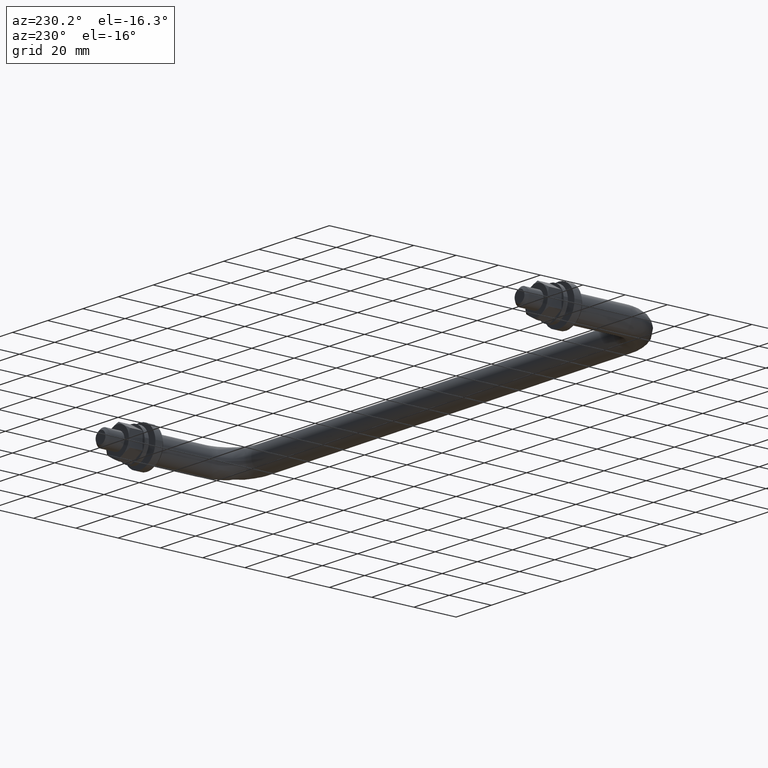
[diagram: clean part render]
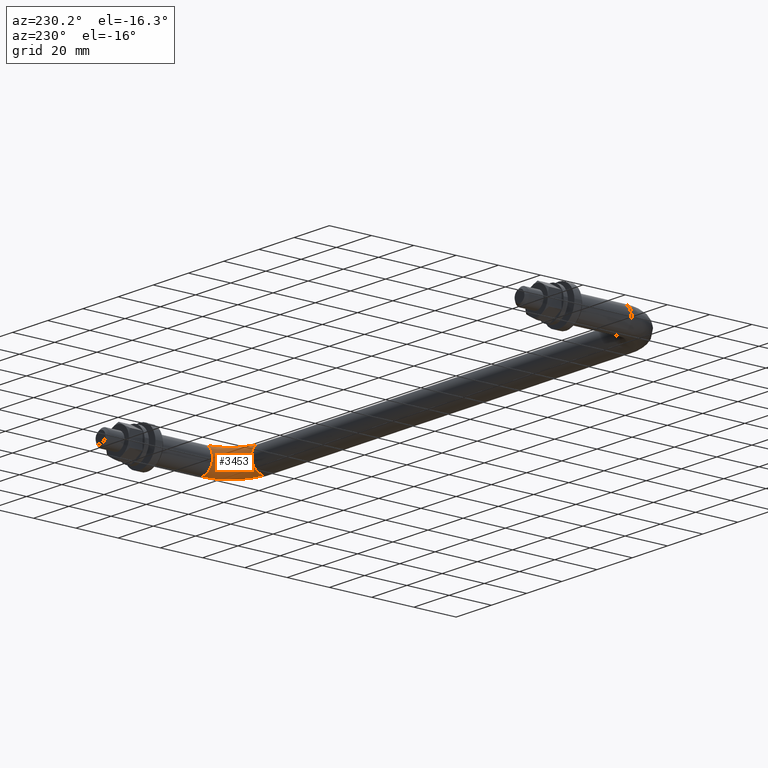
[diagram: same view with one face highlighted and labeled with its STEP entity id]
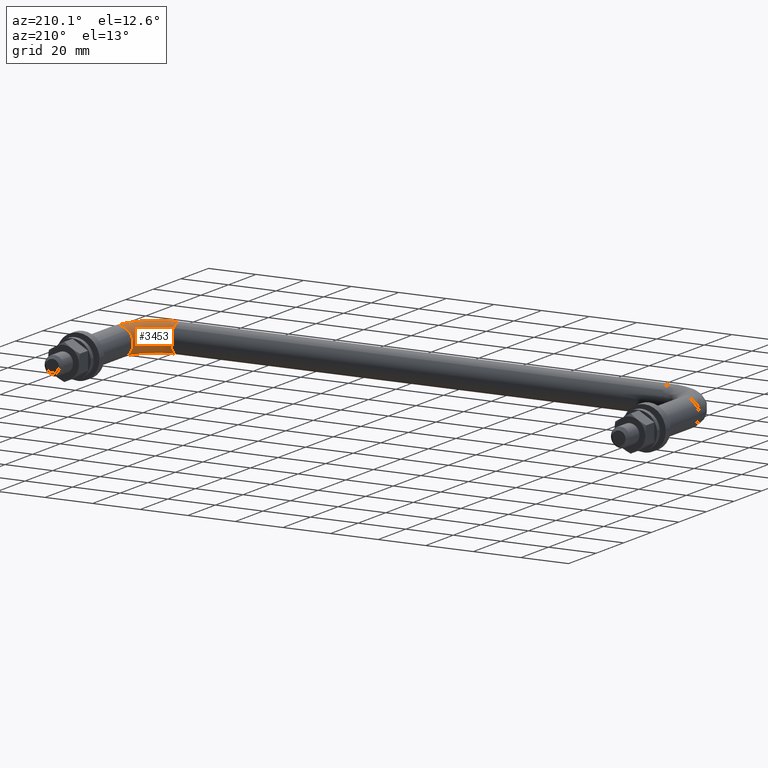
[diagram: same view with one face highlighted and labeled with its STEP entity id]
A machine part, auxiliary view. The second image highlights one B-rep face of the part: STEP entity #3453.
A second angle (auxiliary view) of the same face is appended — the face is thin or edge-on in the first view.
In plain terms, the highlighted face is a freeform B-spline surface patch.
Its self-contained STEP definition (entity closure, byte-faithful):
#2738=CARTESIAN_POINT('',(237.924603760736890,-28.000000000244398,-5.999526265223361));
#2739=VERTEX_POINT('',#2738);
#2757=CARTESIAN_POINT('',(232.0,-28.0,0.0));
#2758=VERTEX_POINT('',#2757);
#2759=CARTESIAN_POINT('',(232.0,-28.0,0.0));
#2760=CARTESIAN_POINT('',(232.000000000000030,-28.0,-5.925071579517050));
#2761=CARTESIAN_POINT('',(237.924603760736970,-28.000000000244402,-5.999526265223361));
#2769=(BOUNDED_CURVE()B_SPLINE_CURVE(2,(#2759,#2760,#2761),.UNSPECIFIED.,.F.,.U.)B_SPLINE_CURVE_WITH_KNOTS((3,3),(0.0,0.247784295923900),.UNSPECIFIED.)CURVE()GEOMETRIC_REPRESENTATION_ITEM()RATIONAL_B_SPLINE_CURVE((1.0,0.709702639981696,0.994854295649010))REPRESENTATION_ITEM(''));
#2770=EDGE_CURVE('',#2758,#2739,#2769,.T.);
#2772=CARTESIAN_POINT('',(234.264912180170310,-28.0,4.695648941111294));
#2773=VERTEX_POINT('',#2772);
#2774=CARTESIAN_POINT('',(234.264912180170230,-28.000000000000007,4.695648941111295));
#2775=CARTESIAN_POINT('',(232.0,-27.999999999999993,2.894056444899107));
#2776=CARTESIAN_POINT('',(232.0,-28.0,0.0));
#2784=(BOUNDED_CURVE()B_SPLINE_CURVE(2,(#2774,#2775,#2776),.UNSPECIFIED.,.F.,.U.)B_SPLINE_CURVE_WITH_KNOTS((3,3),(0.857863877391704,1.0),.UNSPECIFIED.)CURVE()GEOMETRIC_REPRESENTATION_ITEM()RATIONAL_B_SPLINE_CURVE((0.856305618643987,0.833477174158371,1.0))REPRESENTATION_ITEM(''));
#2785=EDGE_CURVE('',#2773,#2758,#2784,.T.);
#2899=CARTESIAN_POINT('',(238.418400041081100,-27.999999988341919,5.985394005879900));
#2900=VERTEX_POINT('',#2899);
#2901=CARTESIAN_POINT('',(238.418400041081160,-27.999999988341923,5.985394005879900));
#2902=CARTESIAN_POINT('',(238.209455228823490,-28.000000000000004,6.0));
#2903=CARTESIAN_POINT('',(238.0,-28.0,6.0));
#2904=CARTESIAN_POINT('',(235.904706199465100,-27.999999999999993,6.0));
#2905=CARTESIAN_POINT('',(234.264912180170280,-28.0,4.695648941111294));
#2913=(BOUNDED_CURVE()B_SPLINE_CURVE(2,(#2901,#2902,#2903,#2904,#2905),.UNSPECIFIED.,.F.,.U.)B_SPLINE_CURVE_WITH_KNOTS((3,2,3),(0.737833655983836,0.750000000000000,0.857863877391703),.UNSPECIFIED.)CURVE()GEOMETRIC_REPRESENTATION_ITEM()RATIONAL_B_SPLINE_CURVE((0.972879811768446,0.985746241359656,1.0,0.873629607028178,0.856305618643987))REPRESENTATION_ITEM(''));
#2914=EDGE_CURVE('',#2900,#2773,#2913,.T.);
#2954=CARTESIAN_POINT('',(222.000000001557710,-43.924603758642313,-5.999526265197038));
#2955=VERTEX_POINT('',#2954);
#3027=CARTESIAN_POINT('',(222.0,-40.024279710704903,4.493734324733426));
#3028=VERTEX_POINT('',#3027);
#3034=CARTESIAN_POINT('',(222.0,-38.0,0.0));
#3035=VERTEX_POINT('',#3034);
#3036=CARTESIAN_POINT('',(222.0,-40.024279710704903,4.493734324733426));
#3037=CARTESIAN_POINT('',(222.0,-37.999999999999993,2.702802922143729));
#3038=CARTESIAN_POINT('',(222.0,-38.0,0.0));
#3046=(BOUNDED_CURVE()B_SPLINE_CURVE(2,(#3036,#3037,#3038),.UNSPECIFIED.,.F.,.U.)B_SPLINE_CURVE_WITH_KNOTS((3,3),(0.865779888059616,1.0),.UNSPECIFIED.)CURVE()GEOMETRIC_REPRESENTATION_ITEM()RATIONAL_B_SPLINE_CURVE((0.854350158224966,0.842751357537116,1.0))REPRESENTATION_ITEM(''));
#3047=EDGE_CURVE('',#3028,#3035,#3046,.T.);
#3049=CARTESIAN_POINT('',(222.0,-38.0,0.0));
#3050=CARTESIAN_POINT('',(221.999999999999940,-37.999999999999993,-5.925071575379492));
#3051=CARTESIAN_POINT('',(222.000000001557710,-43.924603758642306,-5.999526265197038));
#3059=(BOUNDED_CURVE()B_SPLINE_CURVE(2,(#3049,#3050,#3051),.UNSPECIFIED.,.F.,.U.)B_SPLINE_CURVE_WITH_KNOTS((3,3),(0.0,0.247784295801099),.UNSPECIFIED.)CURVE()GEOMETRIC_REPRESENTATION_ITEM()RATIONAL_B_SPLINE_CURVE((1.0,0.709702640125566,0.994854295366371))REPRESENTATION_ITEM(''));
#3060=EDGE_CURVE('',#3035,#2955,#3059,.T.);
#3098=CARTESIAN_POINT('',(221.999999978992090,-44.418400041564851,5.985394005846084));
#3099=VERTEX_POINT('',#3098);
#3113=CARTESIAN_POINT('',(221.999999978992150,-44.418400041564858,5.985394005846084));
#3114=CARTESIAN_POINT('',(222.000000000000060,-44.209455229309008,6.0));
#3115=CARTESIAN_POINT('',(222.0,-44.0,6.0));
#3116=CARTESIAN_POINT('',(221.999999999999970,-41.726803347827115,6.0));
#3117=CARTESIAN_POINT('',(221.999999999999940,-40.024279710704910,4.493734324733426));
#3125=(BOUNDED_CURVE()B_SPLINE_CURVE(2,(#3113,#3114,#3115,#3116,#3117),.UNSPECIFIED.,.F.,.U.)B_SPLINE_CURVE_WITH_KNOTS((3,2,3),(0.737833655956036,0.750000000000000,0.865779888059615),.UNSPECIFIED.)CURVE()GEOMETRIC_REPRESENTATION_ITEM()RATIONAL_B_SPLINE_CURVE((0.972879811709646,0.985746241327086,1.0,0.864355423649432,0.854350158224966))REPRESENTATION_ITEM(''));
#3126=EDGE_CURVE('',#3099,#3028,#3125,.T.);
#3390=CARTESIAN_POINT('',(220.858312176858730,-44.378656248895858,5.985394066133805));
#3391=CARTESIAN_POINT('',(239.691435207828990,-45.691434715543750,5.985394066133804));
#3392=CARTESIAN_POINT('',(238.378656217127030,-26.858311721103281,5.985394066133805));
#3393=CARTESIAN_POINT('',(220.870223828893500,-44.207771660237903,5.997368459328779));
#3394=CARTESIAN_POINT('',(239.506853909930040,-45.506853422781191,5.997368459328780));
#3395=CARTESIAN_POINT('',(238.207771628800630,-26.870223377893055,5.997368459328781));
#3396=CARTESIAN_POINT('',(220.882163605699300,-44.036483593546343,5.999526265222895));
#3397=CARTESIAN_POINT('',(239.321836794502840,-45.321836312502107,5.999526265222896));
#3398=CARTESIAN_POINT('',(238.036483562441190,-26.882163159465186,5.999526265222896));
#3399=CARTESIAN_POINT('',(221.299353248056830,-38.051479983738822,6.074922504523010));
#3400=CARTESIAN_POINT('',(232.857124306952390,-38.857124004840045,6.074922504523014));
#3401=CARTESIAN_POINT('',(232.051479964242530,-27.299352968362516,6.074922504523012));
#3402=CARTESIAN_POINT('',(221.304596083693890,-37.976266251115838,0.075396239300117));
#3403=CARTESIAN_POINT('',(232.775882057453030,-38.775881757601248,0.075396239300117));
#3404=CARTESIAN_POINT('',(231.976266231765350,-27.304595806092468,0.075396239300117));
#3405=CARTESIAN_POINT('',(221.309838919330930,-37.901052518492840,-5.924130025922777));
#3406=CARTESIAN_POINT('',(232.694639807953510,-38.694639510362428,-5.924130025922778));
#3407=CARTESIAN_POINT('',(231.901052499288340,-27.309838643822427,-5.924130025922779));
#3408=CARTESIAN_POINT('',(220.892649276973490,-43.886056128300361,-5.999526265222895));
#3409=CARTESIAN_POINT('',(239.159352295503910,-45.159351818024525,-5.999526265222896));
#3410=CARTESIAN_POINT('',(237.886056097487000,-26.892648834925104,-5.999526265222896));
#3418=(BOUNDED_SURFACE()B_SPLINE_SURFACE(2,2,((#3390,#3393,#3396,#3399,#3402,#3405,#3408),(#3391,#3394,#3397,#3400,#3403,#3406,#3409),(#3392,#3395,#3398,#3401,#3404,#3407,#3410)),.UNSPECIFIED.,.F.,.F.,.U.)B_SPLINE_SURFACE_WITH_KNOTS((3,3),(3,2,2,3),(0.0,29.920462421271090),(0.0,0.397644640654331,10.338770137608661,20.279895634562990),.UNSPECIFIED.)GEOMETRIC_REPRESENTATION_ITEM()RATIONAL_B_SPLINE_SURFACE(((0.895729732449210,0.905606490046838,0.916342095240933,0.647951709431553,0.916342095240933,0.647951709431553,0.916342095240933),(0.587800221482116,0.594281596491894,0.601326568744382,0.425202094466791,0.601326568744382,0.425202094466791,0.601326568744382),(0.895729743804760,0.905606501527600,0.916342106857795,0.647951717645915,0.916342106857795,0.647951717645915,0.916342106857795)))REPRESENTATION_ITEM('')SURFACE());
#3419=ORIENTED_EDGE('',*,*,#2914,.T.);
#3420=ORIENTED_EDGE('',*,*,#2785,.T.);
#3421=ORIENTED_EDGE('',*,*,#2770,.T.);
#3422=CARTESIAN_POINT('',(222.000000001557650,-43.924603758642291,-5.999526265197038));
#3423=CARTESIAN_POINT('',(237.924603760211170,-43.924603757584578,-5.999526265222896));
#3424=CARTESIAN_POINT('',(237.924603760736890,-28.000000000244398,-5.999526265223361));
#3432=(BOUNDED_CURVE()B_SPLINE_CURVE(2,(#3422,#3423,#3424),.UNSPECIFIED.,.F.,.U.)B_SPLINE_CURVE_WITH_KNOTS((3,3),(-1.734750791455125,-0.265249208373494),.UNSPECIFIED.)CURVE()GEOMETRIC_REPRESENTATION_ITEM()RATIONAL_B_SPLINE_CURVE((0.889029723504402,0.628638946258975,0.889029723565138))REPRESENTATION_ITEM(''));
#3433=EDGE_CURVE('',#2955,#2739,#3432,.T.);
#3434=ORIENTED_EDGE('',*,*,#3433,.F.);
#3435=ORIENTED_EDGE('',*,*,#3060,.F.);
#3436=ORIENTED_EDGE('',*,*,#3047,.F.);
#3437=ORIENTED_EDGE('',*,*,#3126,.F.);
#3438=CARTESIAN_POINT('',(221.999999978992090,-44.418400041564844,5.985394005846084));
#3439=CARTESIAN_POINT('',(238.418399532768860,-44.418399551468433,5.985394043042593));
#3440=CARTESIAN_POINT('',(238.418400041081130,-27.999999988341926,5.985394005879900));
#3448=(BOUNDED_CURVE()B_SPLINE_CURVE(2,(#3438,#3439,#3440),.UNSPECIFIED.,.F.,.U.)B_SPLINE_CURVE_WITH_KNOTS((3,3),(-1.734750794317514,-0.265249206865955),.UNSPECIFIED.)CURVE()GEOMETRIC_REPRESENTATION_ITEM()RATIONAL_B_SPLINE_CURVE((0.869031712796434,0.614498215816966,0.869031712386455))REPRESENTATION_ITEM(''));
#3449=EDGE_CURVE('',#3099,#2900,#3448,.T.);
#3450=ORIENTED_EDGE('',*,*,#3449,.T.);
#3451=EDGE_LOOP('',(#3419,#3420,#3421,#3434,#3435,#3436,#3437,#3450));
#3452=FACE_OUTER_BOUND('',#3451,.T.);
#3453=ADVANCED_FACE('',(#3452),#3418,.T.);